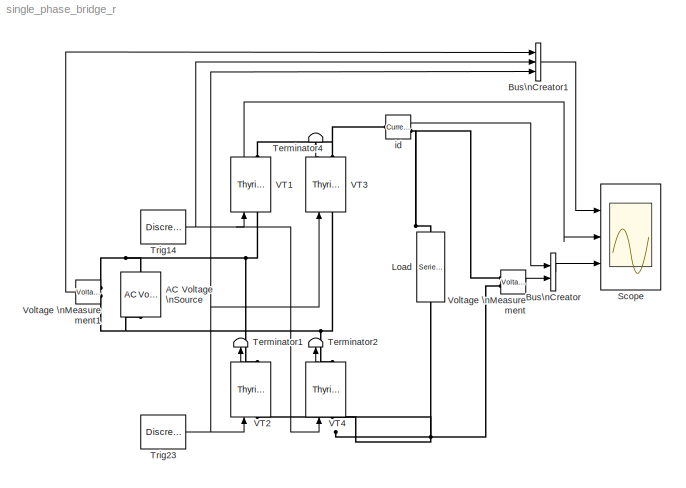
MODEL single_phase_bridge_r
KIND model
BLOCK [Reference] AC Voltage \nSource  REF=powerlib/Electrical\nSources/AC Voltage Source
  Amplitude = 100
  Frequency = 50
  Measurements = None
  Phase = 0
  Ports = [0, 0, 0, 0, 0, 1, 1]
  SampleTime = 0
  ShowPortLabels = on
  SourceBlock = powerlib/Electrical\nSources/AC Voltage Source
  SourceType = AC Voltage Source
BLOCK [BusCreator] Bus\nCreator
  DialogController = Simulink.DDGSource_Bus
  DisplayOption = bar
  Inputs = 2
  Ports = [2, 1]
BLOCK [BusCreator] Bus\nCreator1
  DialogController = Simulink.DDGSource_Bus
  DisplayOption = bar
  Inputs = 3
  Ports = [3, 1]
BLOCK [Reference] Load  REF=powerlib/Elements/Series RLC Branch
  Capacitance = inf
  Inductance = 0
  LConnTagsString = __new0
  LeftPortType = p1
  Measurements = None
  PhysicalDomain = powersysdomain
  Ports = [0, 0, 0, 0, 0, 1, 1]
  RConnTagsString = __new0
  Resistance = 2
  RightPortType = p1
  SourceBlock = powerlib/Elements/Series RLC Branch
  SourceType = Series RLC Branch
  SubClassName = unknown
BLOCK [Scope] Scope
  DataFormat = StructureWithTime
  Decimation = 5
  NumInputPorts = 3
  Ports = [3]
  SampleInput = on
  SampleTime = 1e-4
  TimeRange = 0.1
  YMax = 100~100~100
  YMin = -100~-100~0
BLOCK [Terminator] Terminator1
BLOCK [Terminator] Terminator2
BLOCK [Terminator] Terminator4
BLOCK [DiscretePulseGenerator] Trig14
  Amplitude = 10
  Period = 0.02
  PhaseDelay = 0.0025
  Ports = [0, 1]
  PulseType = Time based
  PulseWidth = 5
BLOCK [DiscretePulseGenerator] Trig23
  Amplitude = 10
  Period = 0.02
  PhaseDelay = 0.0125
  Ports = [0, 1]
  PulseType = Time based
  PulseWidth = 5
BLOCK [Reference] VT1  REF=powerlib/Power\nElectronics/Thyristor
  Cs = 100e-9
  IC = 0
  Lon = 0
  Measurements = on
  Ports = [1, 1, 0, 0, 0, 1, 1]
  Ron = 0.01
  Rs = 1000
  ShowPortLabels = on
  SourceBlock = powerlib/Power\nElectronics/Thyristor
  SourceType = Thyristor
  Vf = 0.8
BLOCK [Reference] VT2  REF=powerlib/Power\nElectronics/Thyristor
  Cs = 100e-9
  IC = 0
  Lon = 0
  Measurements = on
  Ports = [1, 1, 0, 0, 0, 1, 1]
  Ron = 0.01
  Rs = 1000
  ShowPortLabels = on
  SourceBlock = powerlib/Power\nElectronics/Thyristor
  SourceType = Thyristor
  Vf = 0.8
BLOCK [Reference] VT3  REF=powerlib/Power\nElectronics/Thyristor
  Cs = 100e-9
  IC = 0
  Lon = 0
  Measurements = on
  Ports = [1, 1, 0, 0, 0, 1, 1]
  Ron = 0.01
  Rs = 1000
  ShowPortLabels = on
  SourceBlock = powerlib/Power\nElectronics/Thyristor
  SourceType = Thyristor
  Vf = 0.8
BLOCK [Reference] VT4  REF=powerlib/Power\nElectronics/Thyristor
  Cs = 100e-9
  IC = 0
  Lon = 0
  Measurements = on
  Ports = [1, 1, 0, 0, 0, 1, 1]
  Ron = 0.01
  Rs = 1000
  ShowPortLabels = on
  SourceBlock = powerlib/Power\nElectronics/Thyristor
  SourceType = Thyristor
  Vf = 0.8
BLOCK [Reference] Voltage \nMeasurement  REF=powerlib/Measurements/Voltage Measurement
  OutputType = Complex
  PSBequivalent = 0
  PhasorSimulation = off
  Ports = [0, 1, 0, 0, 0, 2]
  ShowPortLabels = on
  SourceBlock = powerlib/Measurements/Voltage Measurement
  SourceType = Voltage Measurement
BLOCK [Reference] Voltage \nMeasurement1  REF=powerlib/Measurements/Voltage Measurement
  OutputType = Complex
  PSBequivalent = 0
  PhasorSimulation = off
  Ports = [0, 1, 0, 0, 0, 2]
  ShowPortLabels = on
  SourceBlock = powerlib/Measurements/Voltage Measurement
  SourceType = Voltage Measurement
BLOCK [Reference] id  REF=powerlib/Measurements/Current Measurement
  OutputType = Complex
  PSBequivalent = 0
  PhasorSimulation = off
  Ports = [0, 1, 0, 0, 0, 1, 1]
  ShowPortLabels = on
  SourceBlock = powerlib/Measurements/Current Measurement
  SourceType = Current Measurement
LINE Bus\nCreator1:1 -> Scope:1
LINE Bus\nCreator:1 -> Scope:3
NET Trig14:1 -> Bus\nCreator1:2, VT1:1, VT4:1
NET Trig23:1 -> Bus\nCreator1:3, VT2:1, VT3:1
LINE VT1:1 -> Scope:2
LINE VT2:1 -> Terminator1:1
LINE VT3:1 -> Terminator4:1
LINE VT4:1 -> Terminator2:1
LINE Voltage \nMeasurement1:1 -> Bus\nCreator1:1
LINE Voltage \nMeasurement:1 -> Bus\nCreator:2
LINE id:1 -> Bus\nCreator:1
PNET net1: AC Voltage \nSource:LConn1 -- VT3:LConn1 -- VT4:RConn1 -- Voltage \nMeasurement1:LConn2
PNET net2: AC Voltage \nSource:RConn1 -- VT1:LConn1 -- VT2:RConn1 -- Voltage \nMeasurement1:LConn1
PNET net3: Load:LConn1 -- Voltage \nMeasurement:LConn1 -- id:RConn1
PNET net4: Load:RConn1 -- VT2:LConn1 -- VT4:LConn1 -- Voltage \nMeasurement:LConn2
PNET net5: VT1:RConn1 -- VT3:RConn1 -- id:LConn1
note: NET lines group one-source signal fan-out (src -> all destinations, sorted); 1:1 wires keep LINE; PNET lines group multi-terminal physical nets as a canonical sorted terminal list (undirected conserving connections); 2-terminal nets keep the pairwise PLINE form
